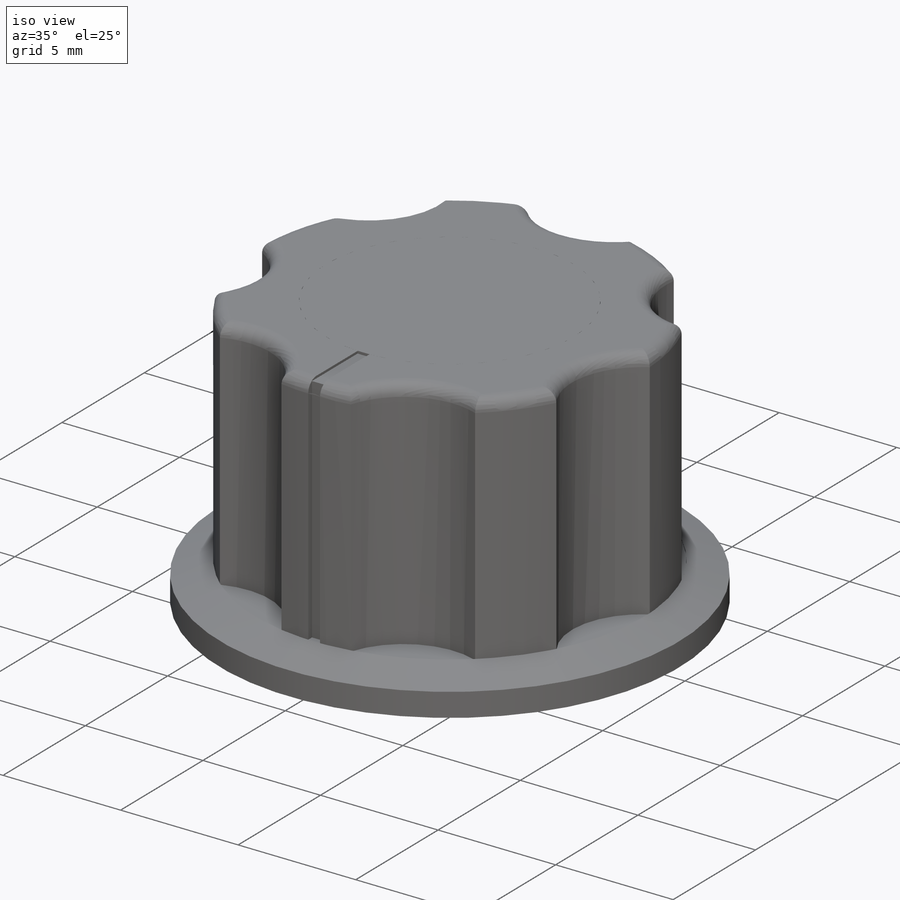
[diagram: iso view]
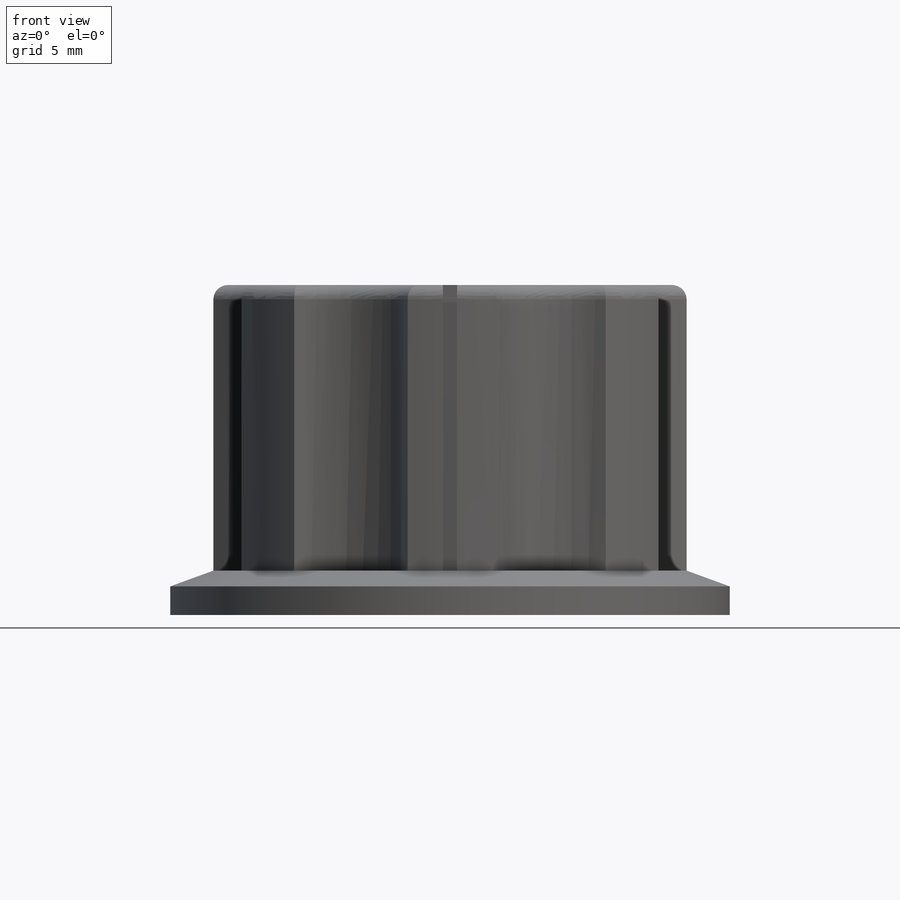
[diagram: front view]
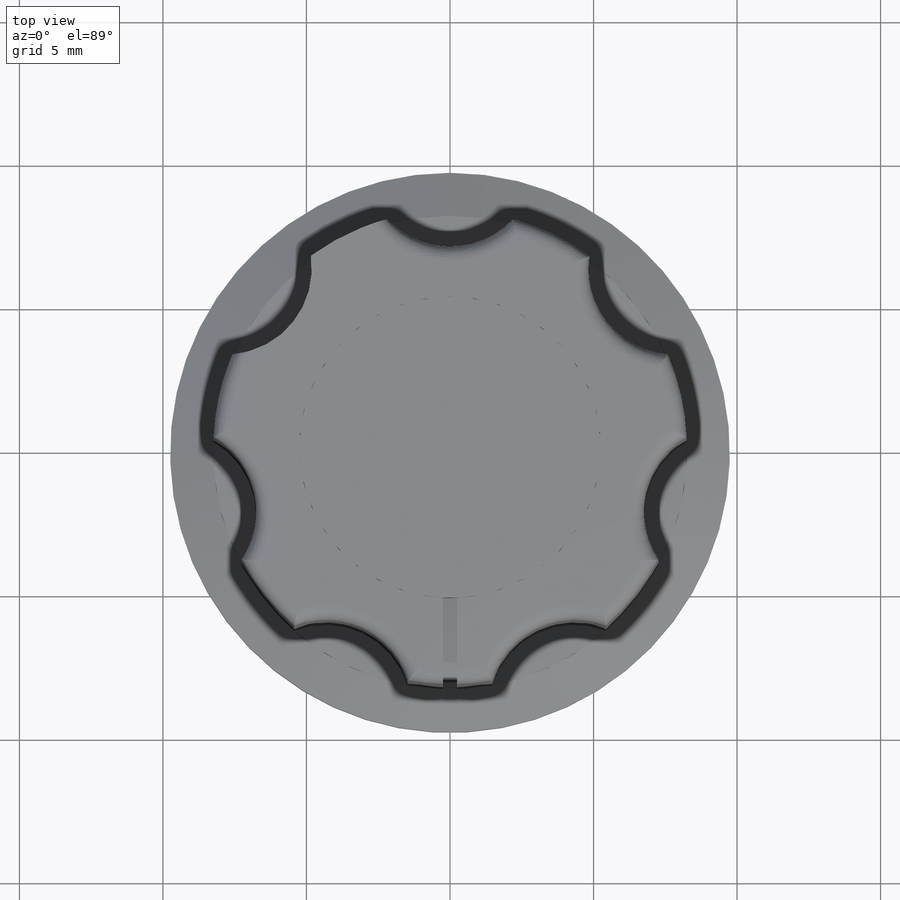
[diagram: top view]
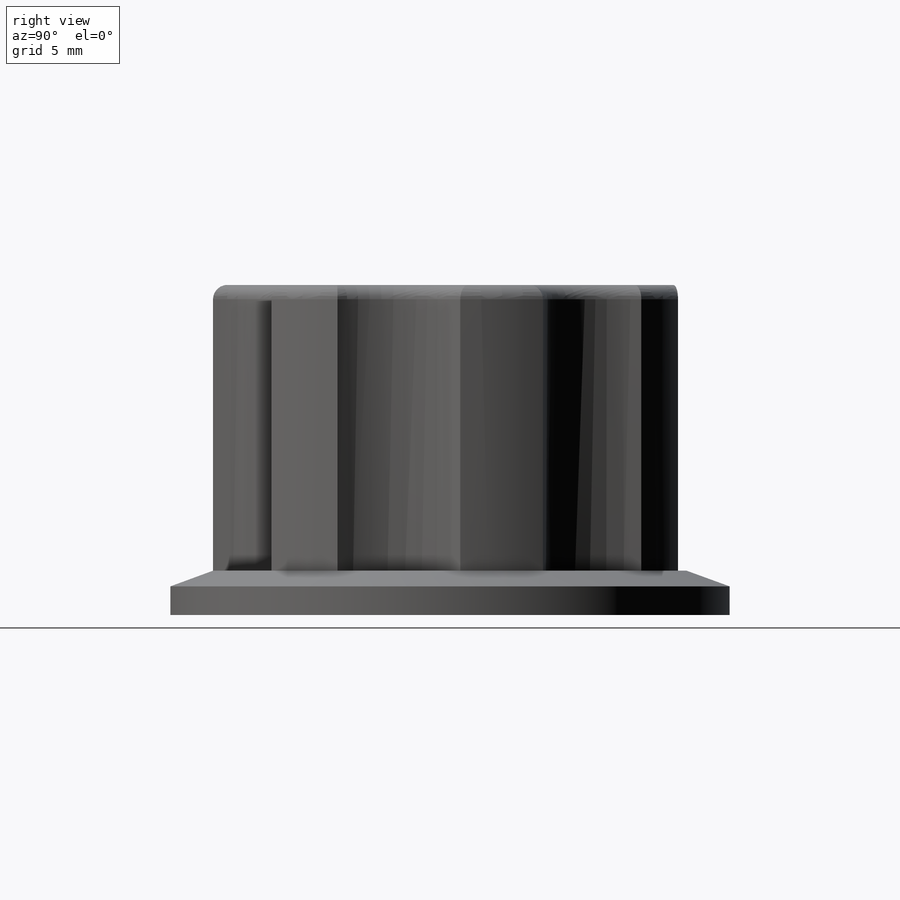
[diagram: right view]
SOLIDWORKS PART (.sldprt)
format: sldprt  version: not decoded by parser v0  size: 379,392 bytes
history: native  units: mm
features: sketch x7, cut_extrude x5, plane x2, material x1, revolve x1, fillet x1, extrude x1 (+13 scaffold rows collapsed)
feature tree (31):
  scaffold x13  (default folders/planes/origin — collapsed)
  material  "Material <not specified>"
  sketch  "Sketch5"  dims[c1.D1=11.5mm c1.D2=9.75mm c1.D3=1.0mm c1.D4=3.0mm c1.D5=1.0mm c2.D5=110.0deg c2.D6=3.0mm c2.D7=3.0mm c2.D8=6.75mm c3.D6=6.0mm c3.D8=3.0mm]
  revolve  "Revolve1"  Angle=360deg
  sketch  "Sketch6"  dims[D1=16.5mm D2=6.0mm D3=10.0mm D4=7.0]
  cut_extrude  "Cut-Extrude2"  Depth=10mm
  fillet  "Fillet1"  Radius=0.5mm
  sketch  "Sketch7"  dims[D1=10.5mm]
  cut_extrude  "Cut-Extrude3"  Depth=1mm
  plane  "Plane1"  Offset=0.01mm
  sketch  "Sketch9"  dims[D1=10.49mm]
  extrude  "Boss-Extrude3"  [1 undecoded]
  plane  "Plane2"
  sketch  "Sketch11"  dims[D1=0.5mm]
  cut_extrude  "Cut-Extrude4"  Depth=0.1mm
  sketch  "Sketch12"
  cut_extrude  "Cut-Extrude6"  Depth=20.5mm
  sketch  "Sketch13"
  cut_extrude  "Cut-Extrude7"  Depth=0.1mm
decode coverage: 12 of 15 modeling features carry decoded parameters
note: 1 parameter value undecoded
note: suppression state not decoded; provenance and decode notes live in map.json
